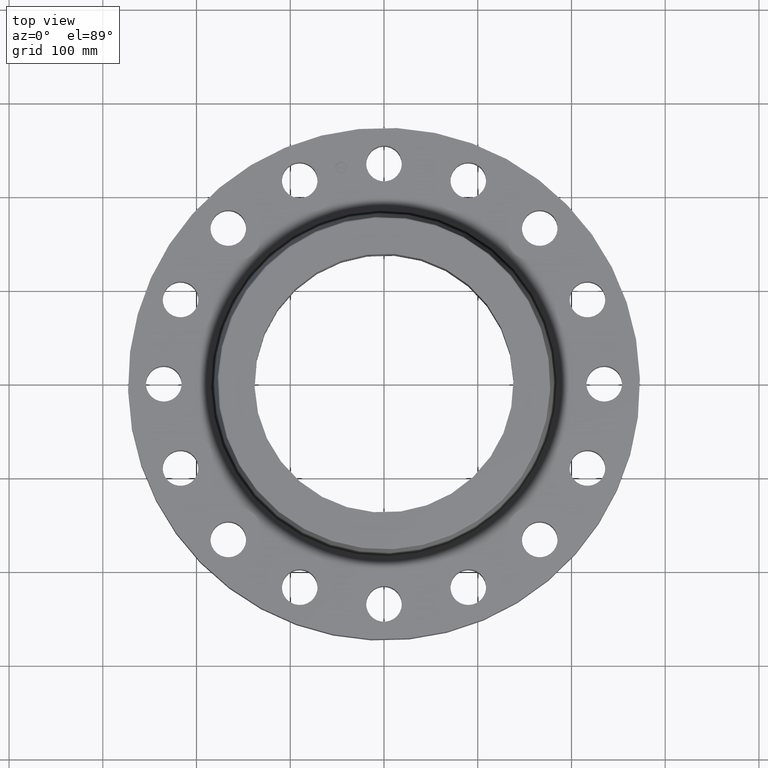
[diagram: clean part render]
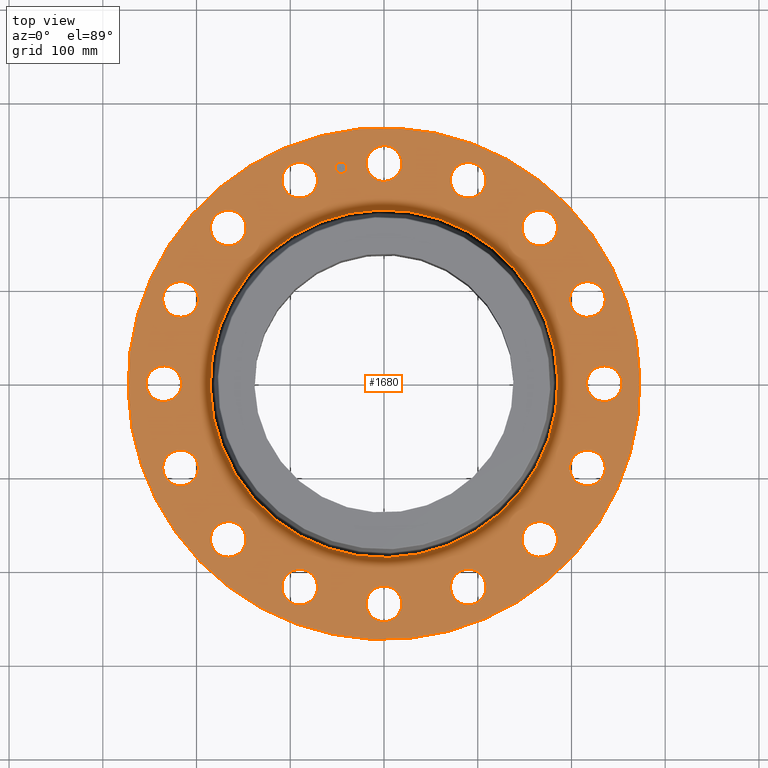
[diagram: same view with one face highlighted and labeled with its STEP entity id]
A machine part, top view. The second image highlights one B-rep face of the part: STEP entity #1680.
In plain terms, the highlighted planar face has unit normal (0, 0, -1).
Its self-contained STEP definition (entity closure, byte-faithful):
#65=AXIS2_PLACEMENT_3D('Circle Axis2P3D',#63,#64,$) ;
#82=AXIS2_PLACEMENT_3D('Circle Axis2P3D',#80,#81,$) ;
#115=AXIS2_PLACEMENT_3D('Circle Axis2P3D',#113,#114,$) ;
#139=AXIS2_PLACEMENT_3D('Circle Axis2P3D',#137,#138,$) ;
#156=AXIS2_PLACEMENT_3D('Circle Axis2P3D',#154,#155,$) ;
#191=AXIS2_PLACEMENT_3D('Circle Axis2P3D',#189,#190,$) ;
#729=AXIS2_PLACEMENT_3D('Circle Axis2P3D',#727,#728,$) ;
#741=AXIS2_PLACEMENT_3D('Circle Axis2P3D',#739,#740,$) ;
#772=AXIS2_PLACEMENT_3D('Circle Axis2P3D',#770,#771,$) ;
#784=AXIS2_PLACEMENT_3D('Circle Axis2P3D',#782,#783,$) ;
#815=AXIS2_PLACEMENT_3D('Circle Axis2P3D',#813,#814,$) ;
#827=AXIS2_PLACEMENT_3D('Circle Axis2P3D',#825,#826,$) ;
#858=AXIS2_PLACEMENT_3D('Circle Axis2P3D',#856,#857,$) ;
#870=AXIS2_PLACEMENT_3D('Circle Axis2P3D',#868,#869,$) ;
#901=AXIS2_PLACEMENT_3D('Circle Axis2P3D',#899,#900,$) ;
#913=AXIS2_PLACEMENT_3D('Circle Axis2P3D',#911,#912,$) ;
#944=AXIS2_PLACEMENT_3D('Circle Axis2P3D',#942,#943,$) ;
#956=AXIS2_PLACEMENT_3D('Circle Axis2P3D',#954,#955,$) ;
#987=AXIS2_PLACEMENT_3D('Circle Axis2P3D',#985,#986,$) ;
#999=AXIS2_PLACEMENT_3D('Circle Axis2P3D',#997,#998,$) ;
#1030=AXIS2_PLACEMENT_3D('Circle Axis2P3D',#1028,#1029,$) ;
#1042=AXIS2_PLACEMENT_3D('Circle Axis2P3D',#1040,#1041,$) ;
#1073=AXIS2_PLACEMENT_3D('Circle Axis2P3D',#1071,#1072,$) ;
#1085=AXIS2_PLACEMENT_3D('Circle Axis2P3D',#1083,#1084,$) ;
#1116=AXIS2_PLACEMENT_3D('Circle Axis2P3D',#1114,#1115,$) ;
#1128=AXIS2_PLACEMENT_3D('Circle Axis2P3D',#1126,#1127,$) ;
#1159=AXIS2_PLACEMENT_3D('Circle Axis2P3D',#1157,#1158,$) ;
#1171=AXIS2_PLACEMENT_3D('Circle Axis2P3D',#1169,#1170,$) ;
#1202=AXIS2_PLACEMENT_3D('Circle Axis2P3D',#1200,#1201,$) ;
#1214=AXIS2_PLACEMENT_3D('Circle Axis2P3D',#1212,#1213,$) ;
#1245=AXIS2_PLACEMENT_3D('Circle Axis2P3D',#1243,#1244,$) ;
#1257=AXIS2_PLACEMENT_3D('Circle Axis2P3D',#1255,#1256,$) ;
#1288=AXIS2_PLACEMENT_3D('Circle Axis2P3D',#1286,#1287,$) ;
#1300=AXIS2_PLACEMENT_3D('Circle Axis2P3D',#1298,#1299,$) ;
#1331=AXIS2_PLACEMENT_3D('Circle Axis2P3D',#1329,#1330,$) ;
#1343=AXIS2_PLACEMENT_3D('Circle Axis2P3D',#1341,#1342,$) ;
#1588=AXIS2_PLACEMENT_3D('Plane Axis2P3D',#1585,#1586,#1587) ;
#1664=AXIS2_PLACEMENT_3D('Circle Axis2P3D',#1662,#1663,$) ;
#1673=AXIS2_PLACEMENT_3D('Circle Axis2P3D',#1671,#1672,$) ;
#46=CARTESIAN_POINT('Vertex',(-0.65818692142,9.60956915399,2.75000000001)) ;
#60=CARTESIAN_POINT('Vertex',(0.65818692142,8.89043084608,2.75000000001)) ;
#63=CARTESIAN_POINT('Axis2P3D Location',(0.,9.25000000004,2.75000000001)) ;
#80=CARTESIAN_POINT('Axis2P3D Location',(0.,9.25000000004,2.75000000001)) ;
#110=CARTESIAN_POINT('Vertex',(-5.15382454002,-9.43401254036,2.75000000001)) ;
#113=CARTESIAN_POINT('Axis2P3D Location',(0.,0.,2.75000000001)) ;
#117=CARTESIAN_POINT('Vertex',(5.15382454002,9.43401254036,2.75000000001)) ;
#137=CARTESIAN_POINT('Axis2P3D Location',(0.,0.,2.75000000001)) ;
#154=CARTESIAN_POINT('Axis2P3D Location',(0.,0.,2.75000000001)) ;
#158=CARTESIAN_POINT('Vertex',(3.49997230245,6.40665632597,2.75000000001)) ;
#160=CARTESIAN_POINT('Vertex',(-3.49997230245,-6.40665632597,2.75000000001)) ;
#189=CARTESIAN_POINT('Axis2P3D Location',(0.,0.,2.75000000001)) ;
#717=CARTESIAN_POINT('Vertex',(-3.06933748213,-9.12996148785,2.75000000001)) ;
#724=CARTESIAN_POINT('Vertex',(-4.01030601665,-7.96180986368,2.75000000001)) ;
#727=CARTESIAN_POINT('Axis2P3D Location',(-3.53982174939,-8.54588567576,2.75000000001)) ;
#739=CARTESIAN_POINT('Axis2P3D Location',(-3.53982174939,-8.54588567576,2.75000000001)) ;
#760=CARTESIAN_POINT('Vertex',(6.32958307764,7.26039994849,2.75000000001)) ;
#767=CARTESIAN_POINT('Vertex',(6.75189237436,5.82107550351,2.75000000001)) ;
#770=CARTESIAN_POINT('Axis2P3D Location',(6.540737726,6.540737726,2.75000000001)) ;
#782=CARTESIAN_POINT('Axis2P3D Location',(6.540737726,6.540737726,2.75000000001)) ;
#803=CARTESIAN_POINT('Vertex',(-6.32958307764,-7.26039994849,2.75000000001)) ;
#810=CARTESIAN_POINT('Vertex',(-6.75189237436,-5.82107550351,2.75000000001)) ;
#813=CARTESIAN_POINT('Axis2P3D Location',(-6.540737726,-6.540737726,2.75000000001)) ;
#825=CARTESIAN_POINT('Axis2P3D Location',(-6.540737726,-6.540737726,2.75000000001)) ;
#846=CARTESIAN_POINT('Vertex',(8.6262070274,4.28550833267,2.75000000001)) ;
#853=CARTESIAN_POINT('Vertex',(8.46556432413,2.79413516612,2.75000000001)) ;
#856=CARTESIAN_POINT('Axis2P3D Location',(8.54588567576,3.53982174939,2.75000000001)) ;
#868=CARTESIAN_POINT('Axis2P3D Location',(8.54588567576,3.53982174939,2.75000000001)) ;
#889=CARTESIAN_POINT('Vertex',(-8.6262070274,-4.28550833267,2.75000000001)) ;
#896=CARTESIAN_POINT('Vertex',(-8.46556432413,-2.79413516612,2.75000000001)) ;
#899=CARTESIAN_POINT('Axis2P3D Location',(-8.54588567576,-3.53982174939,2.75000000001)) ;
#911=CARTESIAN_POINT('Axis2P3D Location',(-8.54588567576,-3.53982174939,2.75000000001)) ;
#932=CARTESIAN_POINT('Vertex',(9.60956915399,0.65818692142,2.75000000001)) ;
#939=CARTESIAN_POINT('Vertex',(8.89043084608,-0.65818692142,2.75000000001)) ;
#942=CARTESIAN_POINT('Axis2P3D Location',(9.25000000004,5.66399144608E-016,2.75000000001)) ;
#954=CARTESIAN_POINT('Axis2P3D Location',(9.25000000004,5.66399144608E-016,2.75000000001)) ;
#975=CARTESIAN_POINT('Vertex',(-9.60956915399,-0.65818692142,2.75000000001)) ;
#982=CARTESIAN_POINT('Vertex',(-8.89043084608,0.65818692142,2.75000000001)) ;
#985=CARTESIAN_POINT('Axis2P3D Location',(-9.25000000004,-1.69919743382E-015,2.75000000001)) ;
#997=CARTESIAN_POINT('Axis2P3D Location',(-9.25000000004,-1.69919743382E-015,2.75000000001)) ;
#1018=CARTESIAN_POINT('Vertex',(9.12996148785,-3.06933748213,2.75000000001)) ;
#1025=CARTESIAN_POINT('Vertex',(7.96180986368,-4.01030601665,2.75000000001)) ;
#1028=CARTESIAN_POINT('Axis2P3D Location',(8.54588567576,-3.53982174939,2.75000000001)) ;
#1040=CARTESIAN_POINT('Axis2P3D Location',(8.54588567576,-3.53982174939,2.75000000001)) ;
#1061=CARTESIAN_POINT('Vertex',(-9.12996148785,3.06933748213,2.75000000001)) ;
#1068=CARTESIAN_POINT('Vertex',(-7.96180986368,4.01030601665,2.75000000001)) ;
#1071=CARTESIAN_POINT('Axis2P3D Location',(-8.54588567576,3.53982174939,2.75000000001)) ;
#1083=CARTESIAN_POINT('Axis2P3D Location',(-8.54588567576,3.53982174939,2.75000000001)) ;
#1104=CARTESIAN_POINT('Vertex',(7.26039994849,-6.32958307764,2.75000000001)) ;
#1111=CARTESIAN_POINT('Vertex',(5.82107550351,-6.75189237436,2.75000000001)) ;
#1114=CARTESIAN_POINT('Axis2P3D Location',(6.540737726,-6.540737726,2.75000000001)) ;
#1126=CARTESIAN_POINT('Axis2P3D Location',(6.540737726,-6.540737726,2.75000000001)) ;
#1147=CARTESIAN_POINT('Vertex',(-7.26039994849,6.32958307764,2.75000000001)) ;
#1154=CARTESIAN_POINT('Vertex',(-5.82107550351,6.75189237436,2.75000000001)) ;
#1157=CARTESIAN_POINT('Axis2P3D Location',(-6.540737726,6.540737726,2.75000000001)) ;
#1169=CARTESIAN_POINT('Axis2P3D Location',(-6.540737726,6.540737726,2.75000000001)) ;
#1190=CARTESIAN_POINT('Vertex',(4.28550833267,-8.6262070274,2.75000000001)) ;
#1197=CARTESIAN_POINT('Vertex',(2.79413516612,-8.46556432413,2.75000000001)) ;
#1200=CARTESIAN_POINT('Axis2P3D Location',(3.53982174939,-8.54588567576,2.75000000001)) ;
#1212=CARTESIAN_POINT('Axis2P3D Location',(3.53982174939,-8.54588567576,2.75000000001)) ;
#1233=CARTESIAN_POINT('Vertex',(-4.28550833267,8.6262070274,2.75000000001)) ;
#1240=CARTESIAN_POINT('Vertex',(-2.79413516612,8.46556432413,2.75000000001)) ;
#1243=CARTESIAN_POINT('Axis2P3D Location',(-3.53982174939,8.54588567576,2.75000000001)) ;
#1255=CARTESIAN_POINT('Axis2P3D Location',(-3.53982174939,8.54588567576,2.75000000001)) ;
#1276=CARTESIAN_POINT('Vertex',(0.65818692142,-9.60956915399,2.75000000001)) ;
#1283=CARTESIAN_POINT('Vertex',(-0.65818692142,-8.89043084608,2.75000000001)) ;
#1286=CARTESIAN_POINT('Axis2P3D Location',(1.13279828922E-015,-9.25000000004,2.75000000001)) ;
#1298=CARTESIAN_POINT('Axis2P3D Location',(1.13279828922E-015,-9.25000000004,2.75000000001)) ;
#1319=CARTESIAN_POINT('Vertex',(3.06933748213,9.12996148785,2.75000000001)) ;
#1326=CARTESIAN_POINT('Vertex',(4.01030601665,7.96180986368,2.75000000001)) ;
#1329=CARTESIAN_POINT('Axis2P3D Location',(3.53982174939,8.54588567576,2.75000000001)) ;
#1341=CARTESIAN_POINT('Axis2P3D Location',(3.53982174939,8.54588567576,2.75000000001)) ;
#1585=CARTESIAN_POINT('Axis2P3D Location',(0.,10.75,2.75000000001)) ;
#1662=CARTESIAN_POINT('Axis2P3D Location',(-1.80458547866,9.07226384377,2.75000000001)) ;
#1666=CARTESIAN_POINT('Vertex',(-2.04732983556,9.02397898907,2.75000000001)) ;
#1668=CARTESIAN_POINT('Vertex',(-1.56184112176,9.12054869847,2.75000000001)) ;
#1671=CARTESIAN_POINT('Axis2P3D Location',(-1.80458547866,9.07226384377,2.75000000001)) ;
#64=DIRECTION('Axis2P3D Direction',(0.,-0.,-0.0393700787402)) ;
#81=DIRECTION('Axis2P3D Direction',(0.,-0.,-0.0393700787402)) ;
#114=DIRECTION('Axis2P3D Direction',(0.,0.,-0.0393700787402)) ;
#138=DIRECTION('Axis2P3D Direction',(0.,0.,-0.0393700787402)) ;
#155=DIRECTION('Axis2P3D Direction',(0.,0.,-0.0393700787402)) ;
#190=DIRECTION('Axis2P3D Direction',(0.,0.,-0.0393700787402)) ;
#728=DIRECTION('Axis2P3D Direction',(0.,0.,-0.0393700787402)) ;
#740=DIRECTION('Axis2P3D Direction',(0.,0.,-0.0393700787402)) ;
#771=DIRECTION('Axis2P3D Direction',(0.,-0.,-0.0393700787402)) ;
#783=DIRECTION('Axis2P3D Direction',(0.,-0.,-0.0393700787402)) ;
#814=DIRECTION('Axis2P3D Direction',(0.,0.,-0.0393700787402)) ;
#826=DIRECTION('Axis2P3D Direction',(0.,0.,-0.0393700787402)) ;
#857=DIRECTION('Axis2P3D Direction',(0.,-0.,-0.0393700787402)) ;
#869=DIRECTION('Axis2P3D Direction',(0.,-0.,-0.0393700787402)) ;
#900=DIRECTION('Axis2P3D Direction',(0.,0.,-0.0393700787402)) ;
#912=DIRECTION('Axis2P3D Direction',(0.,0.,-0.0393700787402)) ;
#943=DIRECTION('Axis2P3D Direction',(0.,-0.,-0.0393700787402)) ;
#955=DIRECTION('Axis2P3D Direction',(0.,-0.,-0.0393700787402)) ;
#986=DIRECTION('Axis2P3D Direction',(0.,0.,-0.0393700787402)) ;
#998=DIRECTION('Axis2P3D Direction',(0.,0.,-0.0393700787402)) ;
#1029=DIRECTION('Axis2P3D Direction',(-0.,0.,-0.0393700787402)) ;
#1041=DIRECTION('Axis2P3D Direction',(-0.,0.,-0.0393700787402)) ;
#1072=DIRECTION('Axis2P3D Direction',(0.,0.,-0.0393700787402)) ;
#1084=DIRECTION('Axis2P3D Direction',(0.,0.,-0.0393700787402)) ;
#1115=DIRECTION('Axis2P3D Direction',(-0.,0.,-0.0393700787402)) ;
#1127=DIRECTION('Axis2P3D Direction',(-0.,0.,-0.0393700787402)) ;
#1158=DIRECTION('Axis2P3D Direction',(0.,0.,-0.0393700787402)) ;
#1170=DIRECTION('Axis2P3D Direction',(0.,0.,-0.0393700787402)) ;
#1201=DIRECTION('Axis2P3D Direction',(-0.,0.,-0.0393700787402)) ;
#1213=DIRECTION('Axis2P3D Direction',(-0.,0.,-0.0393700787402)) ;
#1244=DIRECTION('Axis2P3D Direction',(0.,0.,-0.0393700787402)) ;
#1256=DIRECTION('Axis2P3D Direction',(0.,0.,-0.0393700787402)) ;
#1287=DIRECTION('Axis2P3D Direction',(-0.,0.,-0.0393700787402)) ;
#1299=DIRECTION('Axis2P3D Direction',(-0.,0.,-0.0393700787402)) ;
#1330=DIRECTION('Axis2P3D Direction',(0.,-0.,-0.0393700787402)) ;
#1342=DIRECTION('Axis2P3D Direction',(0.,-0.,-0.0393700787402)) ;
#1586=DIRECTION('Axis2P3D Direction',(0.,0.,-0.0393700787402)) ;
#1587=DIRECTION('Axis2P3D XDirection',(0.0393700787402,0.,0.)) ;
#1663=DIRECTION('Axis2P3D Direction',(0.,0.,-0.0393700787402)) ;
#1672=DIRECTION('Axis2P3D Direction',(0.,0.,-0.0393700787402)) ;
#1591=ORIENTED_EDGE('',*,*,#141,.F.) ;
#1592=ORIENTED_EDGE('',*,*,#119,.F.) ;
#1595=ORIENTED_EDGE('',*,*,#67,.T.) ;
#1596=ORIENTED_EDGE('',*,*,#84,.T.) ;
#1599=ORIENTED_EDGE('',*,*,#193,.T.) ;
#1600=ORIENTED_EDGE('',*,*,#162,.T.) ;
#1603=ORIENTED_EDGE('',*,*,#1345,.T.) ;
#1604=ORIENTED_EDGE('',*,*,#1333,.T.) ;
#1607=ORIENTED_EDGE('',*,*,#786,.T.) ;
#1608=ORIENTED_EDGE('',*,*,#774,.T.) ;
#1611=ORIENTED_EDGE('',*,*,#872,.T.) ;
#1612=ORIENTED_EDGE('',*,*,#860,.T.) ;
#1615=ORIENTED_EDGE('',*,*,#958,.T.) ;
#1616=ORIENTED_EDGE('',*,*,#946,.T.) ;
#1619=ORIENTED_EDGE('',*,*,#1044,.T.) ;
#1620=ORIENTED_EDGE('',*,*,#1032,.T.) ;
#1623=ORIENTED_EDGE('',*,*,#1130,.T.) ;
#1624=ORIENTED_EDGE('',*,*,#1118,.T.) ;
#1627=ORIENTED_EDGE('',*,*,#1216,.T.) ;
#1628=ORIENTED_EDGE('',*,*,#1204,.T.) ;
#1631=ORIENTED_EDGE('',*,*,#1302,.T.) ;
#1632=ORIENTED_EDGE('',*,*,#1290,.T.) ;
#1635=ORIENTED_EDGE('',*,*,#743,.T.) ;
#1636=ORIENTED_EDGE('',*,*,#731,.T.) ;
#1639=ORIENTED_EDGE('',*,*,#829,.T.) ;
#1640=ORIENTED_EDGE('',*,*,#817,.T.) ;
#1643=ORIENTED_EDGE('',*,*,#915,.T.) ;
#1644=ORIENTED_EDGE('',*,*,#903,.T.) ;
#1647=ORIENTED_EDGE('',*,*,#1001,.T.) ;
#1648=ORIENTED_EDGE('',*,*,#989,.T.) ;
#1651=ORIENTED_EDGE('',*,*,#1087,.T.) ;
#1652=ORIENTED_EDGE('',*,*,#1075,.T.) ;
#1655=ORIENTED_EDGE('',*,*,#1173,.T.) ;
#1656=ORIENTED_EDGE('',*,*,#1161,.T.) ;
#1659=ORIENTED_EDGE('',*,*,#1259,.T.) ;
#1660=ORIENTED_EDGE('',*,*,#1247,.T.) ;
#1677=ORIENTED_EDGE('',*,*,#1670,.T.) ;
#1678=ORIENTED_EDGE('',*,*,#1675,.T.) ;
#1597=FACE_BOUND('',#1594,.T.) ;
#1601=FACE_BOUND('',#1598,.T.) ;
#1605=FACE_BOUND('',#1602,.T.) ;
#1609=FACE_BOUND('',#1606,.T.) ;
#1613=FACE_BOUND('',#1610,.T.) ;
#1617=FACE_BOUND('',#1614,.T.) ;
#1621=FACE_BOUND('',#1618,.T.) ;
#1625=FACE_BOUND('',#1622,.T.) ;
#1629=FACE_BOUND('',#1626,.T.) ;
#1633=FACE_BOUND('',#1630,.T.) ;
#1637=FACE_BOUND('',#1634,.T.) ;
#1641=FACE_BOUND('',#1638,.T.) ;
#1645=FACE_BOUND('',#1642,.T.) ;
#1649=FACE_BOUND('',#1646,.T.) ;
#1653=FACE_BOUND('',#1650,.T.) ;
#1657=FACE_BOUND('',#1654,.T.) ;
#1661=FACE_BOUND('',#1658,.T.) ;
#1679=FACE_BOUND('',#1676,.T.) ;
#1680=ADVANCED_FACE('PartBody',(#1593,#1597,#1601,#1605,#1609,#1613,#1617,#1621,#1625,#1629,#1633,#1637,#1641,#1645,#1649,#1653,#1657,#1661,#1679),#1589,.F.) ;
#66=CIRCLE('generated circle',#65,0.750000000003) ;
#83=CIRCLE('generated circle',#82,0.750000000003) ;
#116=CIRCLE('generated circle',#115,10.75) ;
#140=CIRCLE('generated circle',#139,10.75) ;
#157=CIRCLE('generated circle',#156,7.3003459779) ;
#192=CIRCLE('generated circle',#191,7.3003459779) ;
#730=CIRCLE('generated circle',#729,0.750000000003) ;
#742=CIRCLE('generated circle',#741,0.750000000003) ;
#773=CIRCLE('generated circle',#772,0.750000000003) ;
#785=CIRCLE('generated circle',#784,0.750000000003) ;
#816=CIRCLE('generated circle',#815,0.750000000003) ;
#828=CIRCLE('generated circle',#827,0.750000000003) ;
#859=CIRCLE('generated circle',#858,0.750000000003) ;
#871=CIRCLE('generated circle',#870,0.750000000003) ;
#902=CIRCLE('generated circle',#901,0.750000000003) ;
#914=CIRCLE('generated circle',#913,0.750000000003) ;
#945=CIRCLE('generated circle',#944,0.750000000003) ;
#957=CIRCLE('generated circle',#956,0.750000000003) ;
#988=CIRCLE('generated circle',#987,0.750000000003) ;
#1000=CIRCLE('generated circle',#999,0.750000000003) ;
#1031=CIRCLE('generated circle',#1030,0.750000000003) ;
#1043=CIRCLE('generated circle',#1042,0.750000000003) ;
#1074=CIRCLE('generated circle',#1073,0.750000000003) ;
#1086=CIRCLE('generated circle',#1085,0.750000000003) ;
#1117=CIRCLE('generated circle',#1116,0.750000000003) ;
#1129=CIRCLE('generated circle',#1128,0.750000000003) ;
#1160=CIRCLE('generated circle',#1159,0.750000000003) ;
#1172=CIRCLE('generated circle',#1171,0.750000000003) ;
#1203=CIRCLE('generated circle',#1202,0.750000000003) ;
#1215=CIRCLE('generated circle',#1214,0.750000000003) ;
#1246=CIRCLE('generated circle',#1245,0.750000000003) ;
#1258=CIRCLE('generated circle',#1257,0.750000000003) ;
#1289=CIRCLE('generated circle',#1288,0.750000000003) ;
#1301=CIRCLE('generated circle',#1300,0.750000000003) ;
#1332=CIRCLE('generated circle',#1331,0.750000000003) ;
#1344=CIRCLE('generated circle',#1343,0.750000000003) ;
#1665=CIRCLE('generated circle',#1664,0.247500000001) ;
#1674=CIRCLE('generated circle',#1673,0.247500000001) ;
#67=EDGE_CURVE('',#47,#61,#66,.T.) ;
#84=EDGE_CURVE('',#61,#47,#83,.T.) ;
#119=EDGE_CURVE('',#111,#118,#116,.T.) ;
#141=EDGE_CURVE('',#118,#111,#140,.T.) ;
#162=EDGE_CURVE('',#159,#161,#157,.T.) ;
#193=EDGE_CURVE('',#161,#159,#192,.T.) ;
#731=EDGE_CURVE('',#718,#725,#730,.T.) ;
#743=EDGE_CURVE('',#725,#718,#742,.T.) ;
#774=EDGE_CURVE('',#761,#768,#773,.T.) ;
#786=EDGE_CURVE('',#768,#761,#785,.T.) ;
#817=EDGE_CURVE('',#804,#811,#816,.T.) ;
#829=EDGE_CURVE('',#811,#804,#828,.T.) ;
#860=EDGE_CURVE('',#847,#854,#859,.T.) ;
#872=EDGE_CURVE('',#854,#847,#871,.T.) ;
#903=EDGE_CURVE('',#890,#897,#902,.T.) ;
#915=EDGE_CURVE('',#897,#890,#914,.T.) ;
#946=EDGE_CURVE('',#933,#940,#945,.T.) ;
#958=EDGE_CURVE('',#940,#933,#957,.T.) ;
#989=EDGE_CURVE('',#976,#983,#988,.T.) ;
#1001=EDGE_CURVE('',#983,#976,#1000,.T.) ;
#1032=EDGE_CURVE('',#1019,#1026,#1031,.T.) ;
#1044=EDGE_CURVE('',#1026,#1019,#1043,.T.) ;
#1075=EDGE_CURVE('',#1062,#1069,#1074,.T.) ;
#1087=EDGE_CURVE('',#1069,#1062,#1086,.T.) ;
#1118=EDGE_CURVE('',#1105,#1112,#1117,.T.) ;
#1130=EDGE_CURVE('',#1112,#1105,#1129,.T.) ;
#1161=EDGE_CURVE('',#1148,#1155,#1160,.T.) ;
#1173=EDGE_CURVE('',#1155,#1148,#1172,.T.) ;
#1204=EDGE_CURVE('',#1191,#1198,#1203,.T.) ;
#1216=EDGE_CURVE('',#1198,#1191,#1215,.T.) ;
#1247=EDGE_CURVE('',#1234,#1241,#1246,.T.) ;
#1259=EDGE_CURVE('',#1241,#1234,#1258,.T.) ;
#1290=EDGE_CURVE('',#1277,#1284,#1289,.T.) ;
#1302=EDGE_CURVE('',#1284,#1277,#1301,.T.) ;
#1333=EDGE_CURVE('',#1320,#1327,#1332,.T.) ;
#1345=EDGE_CURVE('',#1327,#1320,#1344,.T.) ;
#1670=EDGE_CURVE('',#1667,#1669,#1665,.T.) ;
#1675=EDGE_CURVE('',#1669,#1667,#1674,.T.) ;
#1590=EDGE_LOOP('',(#1591,#1592)) ;
#1594=EDGE_LOOP('',(#1595,#1596)) ;
#1598=EDGE_LOOP('',(#1599,#1600)) ;
#1602=EDGE_LOOP('',(#1603,#1604)) ;
#1606=EDGE_LOOP('',(#1607,#1608)) ;
#1610=EDGE_LOOP('',(#1611,#1612)) ;
#1614=EDGE_LOOP('',(#1615,#1616)) ;
#1618=EDGE_LOOP('',(#1619,#1620)) ;
#1622=EDGE_LOOP('',(#1623,#1624)) ;
#1626=EDGE_LOOP('',(#1627,#1628)) ;
#1630=EDGE_LOOP('',(#1631,#1632)) ;
#1634=EDGE_LOOP('',(#1635,#1636)) ;
#1638=EDGE_LOOP('',(#1639,#1640)) ;
#1642=EDGE_LOOP('',(#1643,#1644)) ;
#1646=EDGE_LOOP('',(#1647,#1648)) ;
#1650=EDGE_LOOP('',(#1651,#1652)) ;
#1654=EDGE_LOOP('',(#1655,#1656)) ;
#1658=EDGE_LOOP('',(#1659,#1660)) ;
#1676=EDGE_LOOP('',(#1677,#1678)) ;
#1593=FACE_OUTER_BOUND('',#1590,.T.) ;
#1589=PLANE('',#1588) ;
#47=VERTEX_POINT('',#46) ;
#61=VERTEX_POINT('',#60) ;
#111=VERTEX_POINT('',#110) ;
#118=VERTEX_POINT('',#117) ;
#159=VERTEX_POINT('',#158) ;
#161=VERTEX_POINT('',#160) ;
#718=VERTEX_POINT('',#717) ;
#725=VERTEX_POINT('',#724) ;
#761=VERTEX_POINT('',#760) ;
#768=VERTEX_POINT('',#767) ;
#804=VERTEX_POINT('',#803) ;
#811=VERTEX_POINT('',#810) ;
#847=VERTEX_POINT('',#846) ;
#854=VERTEX_POINT('',#853) ;
#890=VERTEX_POINT('',#889) ;
#897=VERTEX_POINT('',#896) ;
#933=VERTEX_POINT('',#932) ;
#940=VERTEX_POINT('',#939) ;
#976=VERTEX_POINT('',#975) ;
#983=VERTEX_POINT('',#982) ;
#1019=VERTEX_POINT('',#1018) ;
#1026=VERTEX_POINT('',#1025) ;
#1062=VERTEX_POINT('',#1061) ;
#1069=VERTEX_POINT('',#1068) ;
#1105=VERTEX_POINT('',#1104) ;
#1112=VERTEX_POINT('',#1111) ;
#1148=VERTEX_POINT('',#1147) ;
#1155=VERTEX_POINT('',#1154) ;
#1191=VERTEX_POINT('',#1190) ;
#1198=VERTEX_POINT('',#1197) ;
#1234=VERTEX_POINT('',#1233) ;
#1241=VERTEX_POINT('',#1240) ;
#1277=VERTEX_POINT('',#1276) ;
#1284=VERTEX_POINT('',#1283) ;
#1320=VERTEX_POINT('',#1319) ;
#1327=VERTEX_POINT('',#1326) ;
#1667=VERTEX_POINT('',#1666) ;
#1669=VERTEX_POINT('',#1668) ;